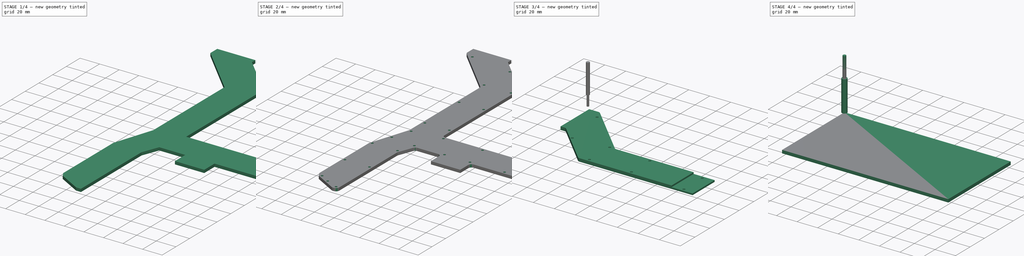
[diagram: build sequence overview — one tinted view per stage of 4, left to right]
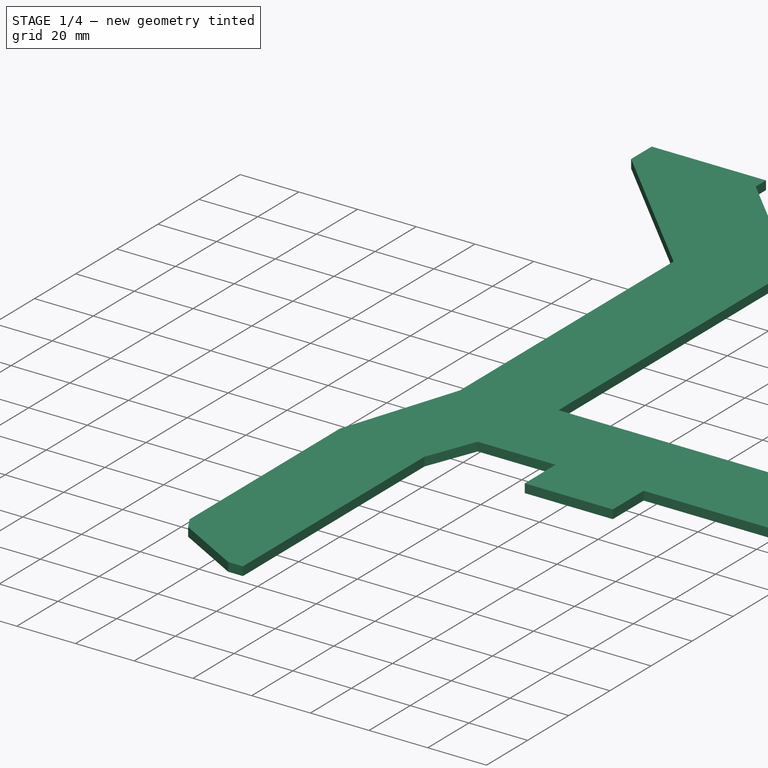
[diagram: stage 1 of 4 — iso view after this stage's code; geometry added in this stage tinted green]
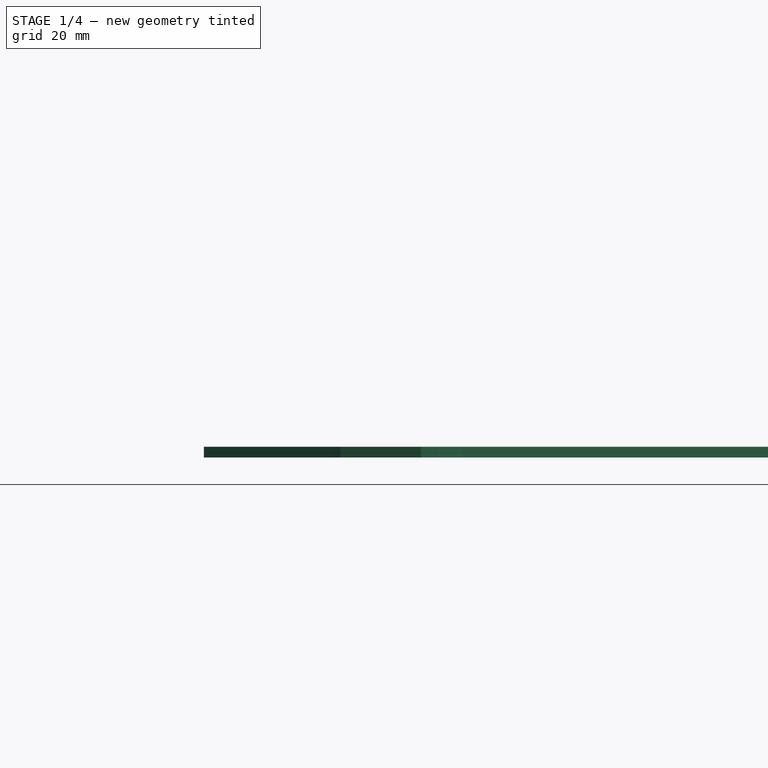
[diagram: stage 1 of 4 — front view after this stage's code; geometry added in this stage tinted green]
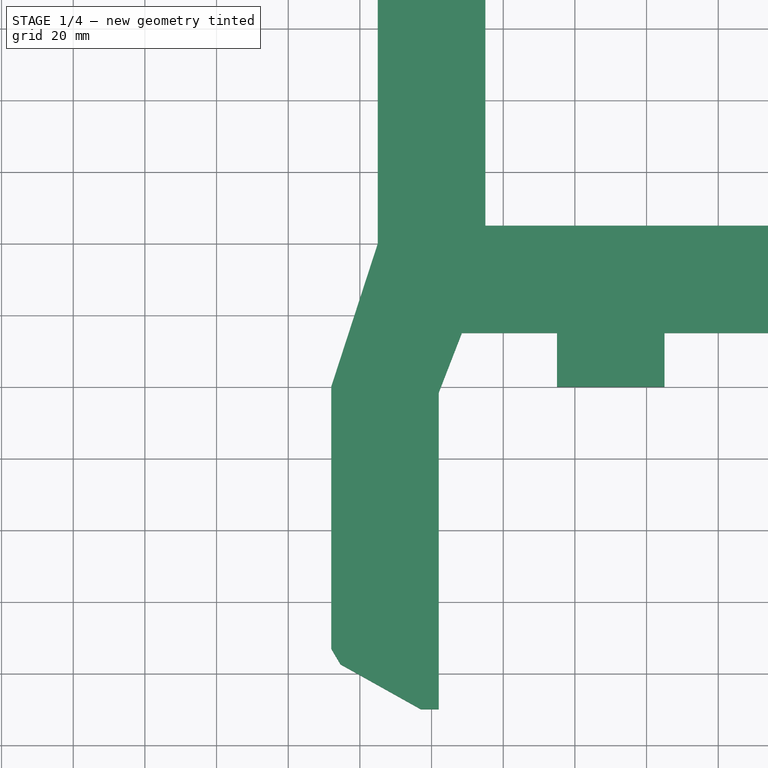
[diagram: stage 1 of 4 — top view after this stage's code; geometry added in this stage tinted green]
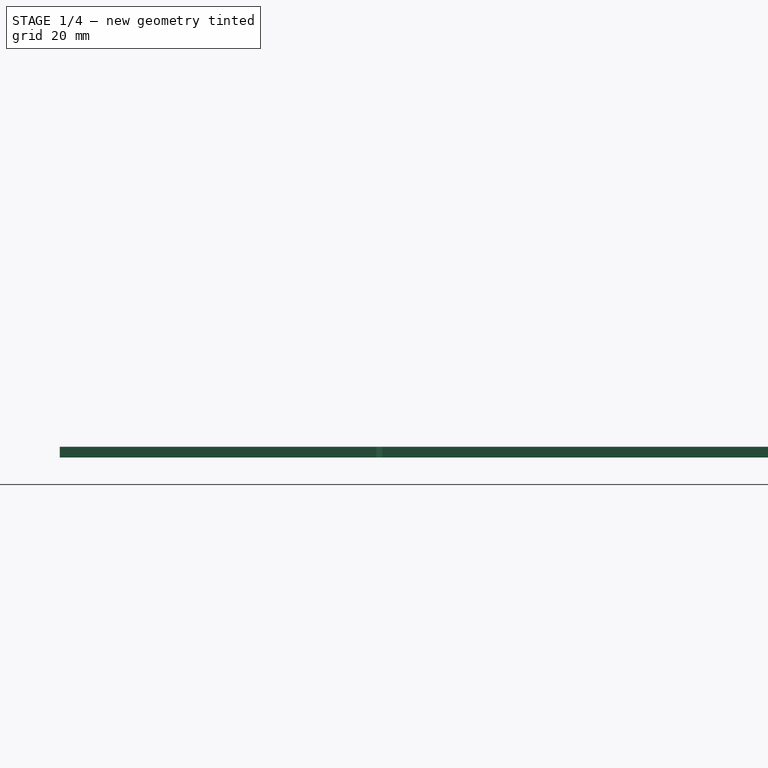
[diagram: stage 1 of 4 — right view after this stage's code; geometry added in this stage tinted green]
FCSTD DOCUMENT  (FreeCAD 0.21R33771 (Git))
Label: Back plate 2 TOol path
License: All rights reserved
LicenseURL: http://en.wikipedia.org/wiki/All_rights_reserved
objects: Path::FeaturePython×7, Sketcher::SketchObject×4, Part::FeaturePython×4, PartDesign::Pocket×3, App::DocumentObjectGroup×3, App::MeasureDistance×2, PartDesign::Pad×1, PartDesign::Fillet×1, PartDesign::Body×1, App::FeaturePython×1
note: 22 computed .brp shape members not serialized (recipe doc carries the construction recipe); baked Part::Feature solids carry a one-line shape summary decoded from their .brp

FEATURE [Sketcher::SketchObject] Sketch182  label="Wire channels Pocket003"
  FullyConstrained = false
  MapMode = 5
  Placement = pos=(0,0,0) rot=(1,0,0;3.14159rad)
  sketch-geometry (29):
    g0: LineSegment StartX=101.467 StartY=-402.5 StartZ=0 EndX=130.4 EndY=-402.5 EndZ=0
    g1: LineSegment StartX=200 StartY=-200 StartZ=0 EndX=220 EndY=-200 EndZ=0
    g2: LineSegment StartX=135.4 StartY=-402.5 StartZ=0 EndX=135.4 EndY=-397.5 EndZ=0
    g3: LineSegment StartX=135.4 StartY=-397.5 StartZ=0 EndX=175 EndY=-357.904 EndZ=0
    g4: LineSegment StartX=175 StartY=-357.904 StartZ=0 EndX=175 EndY=-245 EndZ=0
    g5: LineSegment StartX=175 StartY=-245 StartZ=0 EndX=290 EndY=-245 EndZ=0
    g6: LineSegment StartX=290 StartY=-245 StartZ=0 EndX=295 EndY=-245 EndZ=0
    g7: LineSegment StartX=295 StartY=-245 StartZ=0 EndX=295 EndY=-215 EndZ=0
    g8: LineSegment StartX=295 StartY=-215 StartZ=0 EndX=290 EndY=-215 EndZ=0
    g9: LineSegment StartX=290 StartY=-215 StartZ=0 EndX=225 EndY=-215 EndZ=0
    g10: LineSegment StartX=225 StartY=-215 StartZ=0 EndX=225 EndY=-200 EndZ=0
    g11: LineSegment StartX=195 StartY=-200 StartZ=0 EndX=195 EndY=-215 EndZ=0
    g12: LineSegment StartX=195 StartY=-215 StartZ=0 EndX=168.46 EndY=-215 EndZ=0
    g13: LineSegment StartX=168.46 StartY=-215 StartZ=0 EndX=162 EndY=-198.36 EndZ=0
    g14: LineSegment StartX=162 StartY=-198.36 StartZ=0 EndX=162 EndY=-115 EndZ=0
    g15: LineSegment StartX=162 StartY=-115 StartZ=0 EndX=162 EndY=-110 EndZ=0
    g16: LineSegment StartX=162 StartY=-110 StartZ=0 EndX=157 EndY=-110 EndZ=0
    g17: LineSegment StartX=157 StartY=-110 StartZ=0 EndX=134.577 EndY=-122.534 EndZ=0
    g18: LineSegment StartX=134.577 StartY=-122.534 StartZ=0 EndX=132 EndY=-126.896 EndZ=0
    g19: LineSegment StartX=132 StartY=-126.896 StartZ=0 EndX=132 EndY=-200.027 EndZ=0
    g20: LineSegment StartX=132 StartY=-200.027 StartZ=0 EndX=144.989 EndY=-239.968 EndZ=0
    g21: LineSegment StartX=144.989 StartY=-239.968 StartZ=0 EndX=144.989 EndY=-343.839 EndZ=0
    g22: LineSegment StartX=144.989 StartY=-343.839 StartZ=0 EndX=96.4674 EndY=-392.5 EndZ=0
    g23: LineSegment StartX=96.4674 StartY=-392.5 StartZ=0 EndX=96.4674 EndY=-397.5 EndZ=0
    g24: LineSegment StartX=96.4674 StartY=-397.5 StartZ=0 EndX=96.4674 EndY=-402.5 EndZ=0
    g25: LineSegment StartX=101.467 StartY=-402.5 StartZ=0 EndX=96.4674 EndY=-402.5 EndZ=0
    g26: LineSegment StartX=130.4 StartY=-402.5 StartZ=0 EndX=135.4 EndY=-402.5 EndZ=0
    g27: LineSegment StartX=225 StartY=-200 StartZ=0 EndX=220 EndY=-200 EndZ=0
    g28: LineSegment StartX=195 StartY=-200 StartZ=0 EndX=200 EndY=-200 EndZ=0
  constraints (78):
    c: Horizontal(g0)
    c: DistanceX(g0,g0) = 28.9326
    c: Horizontal(g1)
    c: DistanceX(g1,g1) = 20
    c: Vertical(g2)
    c: Coincident(g2,g3)
    c: Coincident(g3,g4)
    c: Vertical(g4)
    c: Coincident(g4,g5)
    c: Horizontal(g5)
    c: Coincident(g5,g6)
    c: Horizontal(g6)
    c: Coincident(g6,g7)
    c: Vertical(g7)
    c: Coincident(g7,g8)
    c: Horizontal(g8)
    c: Coincident(g8,g9)
    c: Horizontal(g9)
    c: Coincident(g9,g10)
    c: Vertical(g10)
    c: Vertical(g11)
    c: Coincident(g11,g12)
    c: Horizontal(g12)
    c: Coincident(g12,g13)
    c: Coincident(g13,g14)
    c: Vertical(g14)
    c: Coincident(g14,g15)
    c: Vertical(g15)
    c: Coincident(g15,g16)
    c: Horizontal(g16)
    c: Coincident(g16,g17)
    c: Coincident(g17,g18)
    c: Coincident(g18,g19)
    c: Vertical(g19)
    c: Coincident(g19,g20)
    c: Coincident(g20,g21)
    c: Vertical(g21)
    c: Coincident(g21,g22)
    c: Coincident(g22,g23)
    c: Vertical(g23)
    c: Coincident(g23,g24)
    c: Vertical(g24)
    c: Coincident(g25,g0)
    c: Coincident(g25,g24)
    c: Horizontal(g25)
    c: Coincident(g26,g0)
    c: Coincident(g26,g2)
    c: Horizontal(g26)
    c: Coincident(g27,g10)
    c: Coincident(g27,g1)
    c: Horizontal(g27)
    c: Coincident(g28,g11)
    c: Coincident(g28,g1)
    c: Horizontal(g28)
    c: DistanceX(g25,g25) = 5
    c: DistanceX(g26,g26) = 5
    c: DistanceY(g24,g24) = 5
    c: DistanceY(g23,g23) = 5
    c: DistanceY(g2,g2) = 5
    c: Distance(g22) = 68.7186
    c: Distance(g3) = 56
    c: DistanceY(g21,g21) = 103.871
    c: DistanceY(g4,g4) = 112.904
    c: DistanceX(g5,g5) = 115
    c: DistanceX(g12,g12) = 26.54
    c: DistanceX(g9,g9) = 65
    c: Distance(g20) = 42
    c: DistanceY(g19,g19) = 73.1311
    c: DistanceY(g14,g14) = 83.36
    c: DistanceX(g27,g27) = 5
    c: DistanceX(g28,g28) = 5
    c: DistanceX(g8,g8) = 5
    c: DistanceX(g6,g6) = 5
    c: DistanceY(g7,g7) = 30
    c: Distance(g17) = 25.6886
    c: Distance(g18) = 5.06593
    c: Distance(g16) = 5
    c: DistanceY(g15,g15) = 5
FEATURE [PartDesign::Pad] Pad011
  Direction = (0,0,-1)
  Length = 3
  Length2 = 10
  Placement = pos=(0,0,0) rot=(1,0,0;3.14159rad)
  Profile = -> Sketch182
  ReferenceAxis = -> Sketch182 [N_Axis]
  Type = 0
FEATURE [Part::FeaturePython] ToolBit001  label="2mm_Endmill"  # Path/CAM toolbit (typed FeaturePython)
  BitPropertyNames = Chipload | CuttingEdgeHeight | Diameter | Flutes | Length | Material | ShankDiameter | SpindleDirection
  BitShape = C:/Program Files/FreeCAD 0.21/Mod\Path\Tools\Shape\endmill.fcstd
  Chipload = 0
  CuttingEdgeHeight = 10
  Diameter = 2
  File = <userpath>/AppData/Roaming/FreeCAD/Macro/Bit/2mm_Endmill.fctb
  Flutes = 0
  Length = 38
  Material = 0
  ShankDiameter = 3.1
  ShapeName = endmill
  SpindleDirection = 0
FEATURE [Path::FeaturePython] _mm_Endmill  label="2mm_Endmill001"  # Path/CAM operation (typed FeaturePython)
  HorizFeed = 2.66667
  HorizRapid = 0
  SpindleDir = 0
  SpindleSpeed = 10000
  Tool = -> ToolBit001
  ToolNumber = 2
  VertFeed = 2
  VertRapid = 0
  expr: HorizRapid = SetupSheet.HorizRapid
  expr: VertRapid = SetupSheet.VertRapid
FEATURE [App::DocumentObjectGroup] Tools
  Group = -> [TC__Default_Tool,_mm_Endmill]
FEATURE [Path::FeaturePython] Pocket_Shape  # Path/CAM operation (typed FeaturePython)
  Active = true
  AreaParams:
    Tolerance = 1e-07
    FitArcs = True
    Simplify = False
    CleanDistance = 0.0
    Accuracy = 0.01
    Unit = 1.0
    MinArcPoints = 4
    MaxArcPoints = 100
    ClipperScale = 10000000.0
    Fill = 0
    Coplanar = 0
    Reorient = True
    Outline = False
    Explode = False
    OpenMode = 0
    Deflection = 0.01
    SubjectFill = 0
    ClipFill = 0
    Offset = 0.0
    ExtraPass = 0
    Stepover = 0.0
    LastStepover = 0.0
    JoinType = 0
    EndType = 0
    MiterLimit = 2.0
    RoundPrecision = 0.0
    PocketMode = 1
    ToolRadius = 1.0
    PocketExtraOffset = 0.0
    PocketStepover = 0.5
    PocketLastStepover = 0.0
    FromCenter = True
    Angle = 45.0
    AngleShift = 0.0
    Shift = 0.0
    Thicken = False
    SectionCount = -1
    Stepdown = 1.0
    SectionOffset = 0.0
    SectionTolerance = 1e-07
    SectionMode = 2
    Project = False
  Base = -> [Clone]
  ClearanceHeight = 5
  CoolantMode = 0
  CutMode = 0
  CycleTime = 00:07:55
  ExtensionCorners = true
  ExtensionLengthDefault = 1
  ExtraOffset = 0
  FinalDepth = -1.5
  FinishDepth = 0
  KeepToolDown = false
  MinTravel = false
  OffsetPattern = 0
  OpFinalDepth = -1.5
  OpStartDepth = 0
  OpStockZMax = 0
  OpStockZMin = -3
  OpToolDiameter = 2
  PathParams = {'orientation': 1, 'feedrate': 2.6666666666666665, 'feedrate_v': 2.0, 'verbose': True, 'resume_height': 3.0, 'retraction': 5.0, 'return_end': True, 'preamble': False}
  PocketLastStepOver = 0
  SafeHeight = 3
  SplitArcs = false
  StartAt = 0
  StartDepth = 0
  StartPoint = (0,0,0)
  StepDown = 2
  StepOver = 25
  ToolController = -> _mm_Endmill
  UseOutline = false
  UseStartPoint = false
  ZigZagAngle = 45
  expr: ClearanceHeight = OpStockZMax + SetupSheet.ClearanceHeightOffset
  expr: ExtensionLengthDefault = OpToolDiameter / 2
  expr: FinalDepth = OpFinalDepth
  expr: SafeHeight = OpStockZMax + SetupSheet.SafeHeightOffset
  expr: StartDepth = OpStartDepth
  expr: StepDown = OpToolDiameter
FEATURE [Path::FeaturePython] Helix  # Path/CAM operation (typed FeaturePython)
  Active = true
  Base = -> [Clone]
  ClearanceHeight = 5
  CoolantMode = 0
  CycleTime = 00:02:29
  Direction = 0
  FinalDepth = -3
  OffsetExtra = 0
  OpFinalDepth = -3
  OpStartDepth = 0
  OpStockZMax = 0
  OpStockZMin = -3
  OpToolDiameter = 2
  SafeHeight = 3
  StartDepth = 0
  StartRadius = 0
  StartSide = 0
  StepDown = 2
  StepOver = 50
  ToolController = -> _mm_Endmill
  expr: ClearanceHeight = OpStockZMax + SetupSheet.ClearanceHeightOffset
  expr: FinalDepth = OpFinalDepth
  expr: SafeHeight = OpStockZMax + SetupSheet.SafeHeightOffset
  expr: StartDepth = OpStartDepth
  expr: StepDown = OpToolDiameter
FEATURE [Path::FeaturePython] Profile  # Path/CAM operation (typed FeaturePython)
  Active = true
  AreaParams:
    Tolerance = 1e-07
    FitArcs = True
    Simplify = False
    CleanDistance = 0.0
    Accuracy = 0.01
    Unit = 1.0
    MinArcPoints = 4
    MaxArcPoints = 100
    ClipperScale = 10000000.0
    Fill = 0
    Coplanar = 0
    Reorient = True
    Outline = False
    Explode = False
    OpenMode = 0
    Deflection = 0.01
    SubjectFill = 0
    ClipFill = 0
    Offset = 1.0
    ExtraPass = 0
    Stepover = 0.0
    LastStepover = 0.0
    JoinType = 0
    EndType = 0
    MiterLimit = 2.0
    RoundPrecision = 0.0
    PocketMode = 0
    ToolRadius = 1.0
    PocketExtraOffset = 0.0
    PocketStepover = 0.0
    PocketLastStepover = 0.0
    FromCenter = False
    Angle = 45.0
    AngleShift = 0.0
    Shift = 0.0
    Thicken = False
    SectionCount = -1
    Stepdown = 1.0
    SectionOffset = 0.0
    SectionTolerance = 1e-07
    SectionMode = 2
    Project = False
  ClearanceHeight = 5
  CoolantMode = 0
  CycleTime = 00:06:21
  Direction = 0
  FinalDepth = -3
  HandleMultipleFeatures = 0
  JoinType = 0
  MiterLimit = 0.1
  OffsetExtra = 0
  OpFinalDepth = -3
  OpStartDepth = 0
  OpStockZMax = 0
  OpStockZMin = -3
  OpToolDiameter = 2
  PathParams = {'orientation': 1, 'feedrate': 2.6666666666666665, 'feedrate_v': 2.0, 'verbose': True, 'resume_height': 3.0, 'retraction': 5.0, 'return_end': True, 'preamble': False}
  SafeHeight = 3
  Side = 0
  SplitArcs = false
  StartDepth = 0
  StartPoint = (0,0,0)
  StepDown = 2
  ToolController = -> _mm_Endmill
  UseComp = true
  UseStartPoint = false
  processCircles = false
  processHoles = false
  processPerimeter = true
  expr: ClearanceHeight = OpStockZMax + SetupSheet.ClearanceHeightOffset
  expr: FinalDepth = OpFinalDepth
  expr: SafeHeight = OpStockZMax + SetupSheet.SafeHeightOffset
  expr: StartDepth = OpStartDepth
  expr: StepDown = OpToolDiameter
FEATURE [Path::FeaturePython] Pocket_Shape001  # Path/CAM operation (typed FeaturePython)
  Active = true
  AreaParams:
    Tolerance = 1e-07
    FitArcs = True
    Simplify = False
    CleanDistance = 0.0
    Accuracy = 0.01
    Unit = 1.0
    MinArcPoints = 4
    MaxArcPoints = 100
    ClipperScale = 10000000.0
    Fill = 0
    Coplanar = 0
    Reorient = True
    Outline = False
    Explode = False
    OpenMode = 0
    Deflection = 0.01
    SubjectFill = 0
    ClipFill = 0
    Offset = 0.0
    ExtraPass = 0
    Stepover = 0.0
    LastStepover = 0.0
    JoinType = 0
    EndType = 0
    MiterLimit = 2.0
    RoundPrecision = 0.0
    PocketMode = 1
    ToolRadius = 1.0
    PocketExtraOffset = 0.0
    PocketStepover = 2.0
    PocketLastStepover = 0.0
    FromCenter = True
    Angle = 45.0
    AngleShift = 0.0
    Shift = 0.0
    Thicken = False
    SectionCount = -1
    Stepdown = 1.0
    SectionOffset = 0.0
    SectionTolerance = 1e-07
    SectionMode = 2
    Project = False
  Base = -> [Clone]
  ClearanceHeight = 5
  CoolantMode = 0
  CutMode = 0
  CycleTime = 00:00:47
  ExtensionCorners = true
  ExtensionLengthDefault = 1
  ExtraOffset = 0
  FinalDepth = -3
  FinishDepth = 0
  KeepToolDown = false
  MinTravel = false
  OffsetPattern = 0
  OpFinalDepth = -3
  OpStartDepth = 0
  OpStockZMax = 0
  OpStockZMin = -3
  OpToolDiameter = 2
  PathParams = {'orientation': 1, 'feedrate': 2.6666666666666665, 'feedrate_v': 2.0, 'verbose': True, 'resume_height': 3.0, 'retraction': 5.0, 'return_end': True, 'preamble': False}
  PocketLastStepOver = 0
  SafeHeight = 3
  SplitArcs = false
  StartAt = 0
  StartDepth = 0
  StartPoint = (0,0,0)
  StepDown = 2
  StepOver = 100
  ToolController = -> _mm_Endmill
  UseOutline = false
  UseStartPoint = false
  ZigZagAngle = 45
  expr: ClearanceHeight = OpStockZMax + SetupSheet.ClearanceHeightOffset
  expr: ExtensionLengthDefault = OpToolDiameter / 2
  expr: FinalDepth = OpFinalDepth
  expr: SafeHeight = OpStockZMax + SetupSheet.SafeHeightOffset
  expr: StartDepth = OpStartDepth
  expr: StepDown = OpToolDiameter
FEATURE [App::DocumentObjectGroup] Operations
  Group = -> [Pocket_Shape,Helix,Profile,Pocket_Shape001]
FEATURE [Path::FeaturePython] Job  # Path/CAM operation (typed FeaturePython)
  CycleTime = 00:17:32
  Fixtures = G54
  GeometryTolerance = 0.01
  JobType = 0
  LastPostProcessDate = 2024-12-16 11:11:41.714360
  LastPostProcessOutput = <userpath>\Desktop\back plate 2.nc
  Model = -> Model
  Operations = -> Operations
  OrderOutputBy = 0
  PostProcessor = 1
  SetupSheet = -> SetupSheet
  SplitOutput = false
  Stock = -> Stock
  Tools = -> Tools
FEATURE [App::MeasureDistance] Distance  label="Distance: 161.34578 mm"
  Distance = 161.346
  P1 = (0,-86.5326,0)
  P2 = (161.346,-86.5326,0)
FEATURE [App::MeasureDistance] Distance001  label="Distance: 86.53275 mm"
  Distance = 86.5328
  P1 = (161.345,0,0)
  P2 = (161.5,-86.5326,0)
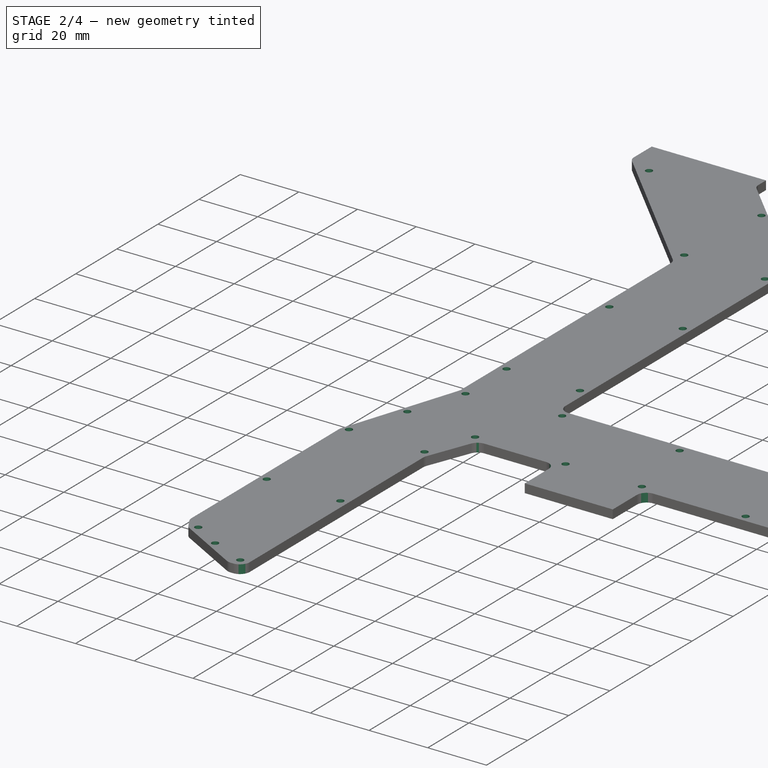
[diagram: stage 2 of 4 — iso view after this stage's code; geometry added in this stage tinted green]
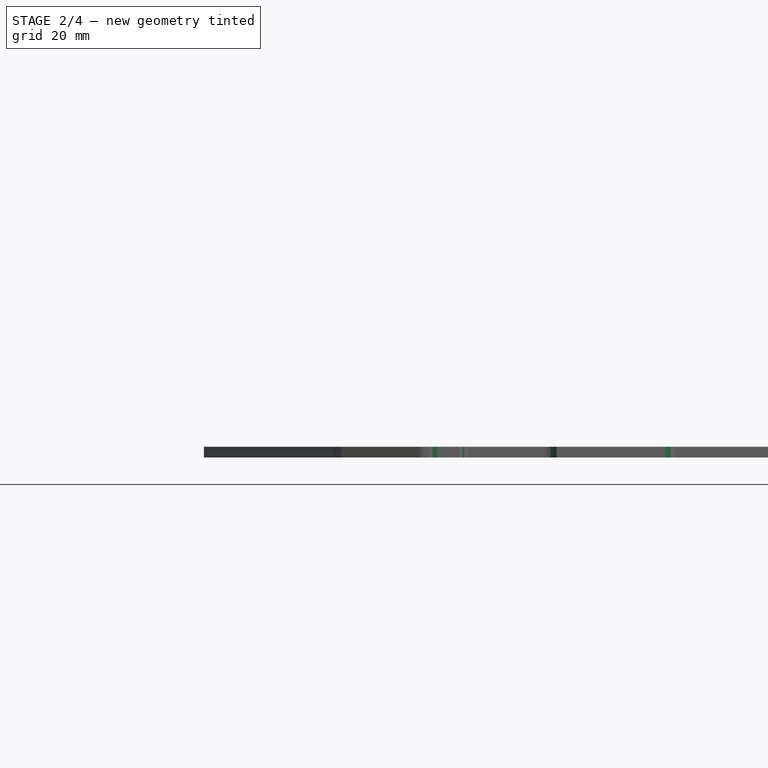
[diagram: stage 2 of 4 — front view after this stage's code; geometry added in this stage tinted green]
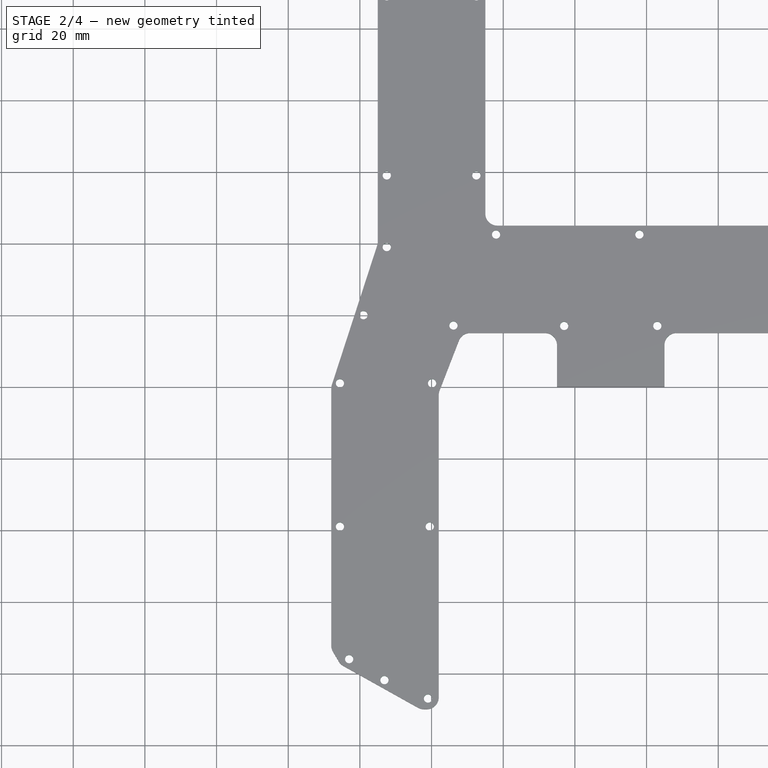
[diagram: stage 2 of 4 — top view after this stage's code; geometry added in this stage tinted green]
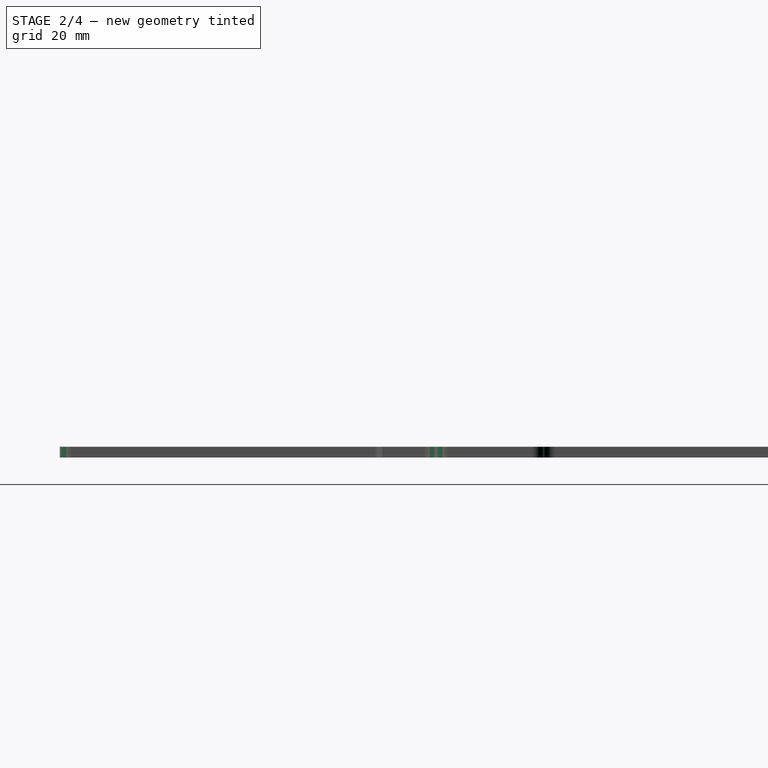
[diagram: stage 2 of 4 — right view after this stage's code; geometry added in this stage tinted green]
FEATURE [PartDesign::Fillet] Fillet036
  Base = -> Pad011 [Edge2,Edge5,Edge8,Edge14,Edge17,Edge20,Edge23,Edge26,Edge29,Edge32,Edge35,Edge53,Edge56,Edge59,Edge65,Edge68,Edge74]
  BaseFeature = -> Pad011
  Placement = pos=(0,0,0) rot=(1,0,0;3.14159rad)
  Radius = 3.35
  SupportTransform = false
  UseAllEdges = false
FEATURE [Sketcher::SketchObject] Sketch183
  FullyConstrained = false
  MapMode = 5
  Placement = pos=(0,0,-3) rot=(1,0,0;3.14159rad)
  Support = -> [Fillet036]
  sketch-geometry (38):
    g0: Circle CenterX=105 CenterY=-389 CenterZ=0 NormalX=0 NormalY=0 NormalZ=1 AngleXU=0 Radius=1.15
    g1: Circle CenterX=145 CenterY=-349 CenterZ=0 NormalX=0 NormalY=0 NormalZ=1 AngleXU=0 Radius=1.15
    g2: Circle CenterX=147.5 CenterY=-309 CenterZ=0 NormalX=0 NormalY=0 NormalZ=1 AngleXU=0 Radius=1.15
    g3: Circle CenterX=147.5 CenterY=-259 CenterZ=0 NormalX=0 NormalY=0 NormalZ=1 AngleXU=0 Radius=1.15
    g4: Circle CenterX=172.5 CenterY=-259 CenterZ=0 NormalX=0 NormalY=0 NormalZ=1 AngleXU=0 Radius=1.15
    g5: Circle CenterX=172.5 CenterY=-309 CenterZ=0 NormalX=0 NormalY=0 NormalZ=1 AngleXU=0 Radius=1.15
    g6: Circle CenterX=172.5 CenterY=-349 CenterZ=0 NormalX=0 NormalY=0 NormalZ=1 AngleXU=0 Radius=1.15
    g7: Circle CenterX=147.665 CenterY=-382.765 CenterZ=0 NormalX=0 NormalY=0 NormalZ=1 AngleXU=0 Radius=1.15
    g8: LineSegment StartX=147.5 StartY=-259 StartZ=0 EndX=147.5 EndY=-239 EndZ=0
    g9: LineSegment StartX=147.5 StartY=-239 StartZ=0 EndX=141 EndY=-220 EndZ=0
    g10: LineSegment StartX=141 StartY=-220 StartZ=0 EndX=134.428 EndY=-201 EndZ=0
    g11: LineSegment StartX=134.428 StartY=-201 StartZ=0 EndX=134.428 EndY=-161 EndZ=0
    g12: LineSegment StartX=134.428 StartY=-161 StartZ=0 EndX=134.428 EndY=-131 EndZ=0
    g13: LineSegment StartX=134.428 StartY=-131.025 StartZ=0 EndX=137 EndY=-124 EndZ=0
    g14: LineSegment StartX=137 StartY=-124 StartZ=0 EndX=146.85 EndY=-118.15 EndZ=0
    g15: LineSegment StartX=172.5 StartY=-259 StartZ=0 EndX=178 EndY=-242.5 EndZ=0
    g16: LineSegment StartX=178 StartY=-242.5 StartZ=0 EndX=218 EndY=-242.5 EndZ=0
    g17: LineSegment StartX=218 StartY=-242.5 StartZ=0 EndX=258 EndY=-242.5 EndZ=0
    g18: LineSegment StartX=258 StartY=-242.5 StartZ=0 EndX=292 EndY=-242.5 EndZ=0
    g19: Circle CenterX=178 CenterY=-242.5 CenterZ=0 NormalX=0 NormalY=0 NormalZ=1 AngleXU=0 Radius=1.15
    g20: Circle CenterX=218 CenterY=-242.5 CenterZ=0 NormalX=0 NormalY=0 NormalZ=1 AngleXU=0 Radius=1.15
    g21: Circle CenterX=258 CenterY=-242.5 CenterZ=0 NormalX=0 NormalY=0 NormalZ=1 AngleXU=0 Radius=1.15
    g22: Circle CenterX=258 CenterY=-217.5 CenterZ=0 NormalX=0 NormalY=0 NormalZ=1 AngleXU=0 Radius=1.15
    g23: Circle CenterX=292 CenterY=-242.5 CenterZ=0 NormalX=0 NormalY=0 NormalZ=1 AngleXU=0 Radius=1.15
    g24: Circle CenterX=292 CenterY=-217.5 CenterZ=0 NormalX=0 NormalY=0 NormalZ=1 AngleXU=0 Radius=1.15
    g25: Circle CenterX=292.5 CenterY=-230 CenterZ=0 NormalX=0 NormalY=0 NormalZ=1 AngleXU=0 Radius=1.15
    g26: Circle CenterX=223 CenterY=-217 CenterZ=0 NormalX=0 NormalY=0 NormalZ=1 AngleXU=0 Radius=1.15
    g27: Circle CenterX=197 CenterY=-217 CenterZ=0 NormalX=0 NormalY=0 NormalZ=1 AngleXU=0 Radius=1.15
    g28: Circle CenterX=166.11 CenterY=-217.11 CenterZ=0 NormalX=0 NormalY=0 NormalZ=1 AngleXU=0 Radius=1.15
    g29: Circle CenterX=147.5 CenterY=-239 CenterZ=0 NormalX=0 NormalY=0 NormalZ=1 AngleXU=0 Radius=1.15
    g30: Circle CenterX=141 CenterY=-220 CenterZ=0 NormalX=0 NormalY=0 NormalZ=1 AngleXU=0 Radius=1.15
    g31: Circle CenterX=134.428 CenterY=-201 CenterZ=0 NormalX=0 NormalY=0 NormalZ=1 AngleXU=0 Radius=1.15
    g32: Circle CenterX=160.15 CenterY=-201 CenterZ=0 NormalX=0 NormalY=0 NormalZ=1 AngleXU=0 Radius=1.15
    g33: Circle CenterX=134.428 CenterY=-161 CenterZ=0 NormalX=0 NormalY=0 NormalZ=1 AngleXU=0 Radius=1.15
    g34: Circle CenterX=159.5 CenterY=-161 CenterZ=0 NormalX=0 NormalY=0 NormalZ=1 AngleXU=0 Radius=1.15
    g35: Circle CenterX=137 CenterY=-124 CenterZ=0 NormalX=0 NormalY=0 NormalZ=1 AngleXU=0 Radius=1.15
    g36: Circle CenterX=146.85 CenterY=-118.15 CenterZ=0 NormalX=0 NormalY=0 NormalZ=1 AngleXU=0 Radius=1.15
    g37: Circle CenterX=159 CenterY=-113 CenterZ=0 NormalX=0 NormalY=0 NormalZ=1 AngleXU=0 Radius=1.15
  constraints (50):
    c: Diameter(g0) = 2.3
    c: Diameter(g1) = 2.3
    c: Diameter(g2) = 2.3
    c: Diameter(g7) = 2.3
    c: Diameter(g6) = 2.3
    c: Diameter(g5) = 2.3
    c: Diameter(g3) = 2.3
    c: Diameter(g4) = 2.3
    c: Coincident(g8,g3)
    c: Vertical(g8)
    c: Coincident(g9,g8)
    c: Coincident(g10,g9)
    c: Coincident(g11,g10)
    c: Vertical(g11)
    c: Coincident(g12,g11)
    c: Vertical(g12)
    c: PointOnObject(g13,g12)
    c: Coincident(g14,g13)
    c: Coincident(g15,g4)
    c: Coincident(g16,g15)
    c: Horizontal(g16)
    c: Coincident(g17,g16)
    c: Horizontal(g17)
    c: Coincident(g18,g17)
    c: Horizontal(g18)
    c: Coincident(g19,g15)
    c: Coincident(g20,g16)
    c: Coincident(g21,g17)
    c: Coincident(g23,g18)
    c: Coincident(g29,g8)
    c: Coincident(g30,g9)
    c: Coincident(g31,g10)
    c: Coincident(g33,g11)
    c: Coincident(g35,g13)
    c: Coincident(g36,g14)
    c: Equal(g29,g30)
    c: Equal(g29,g19)
    c: Equal(g29,g28)
    c: Equal(g29,g27)
    c: Equal(g29,g26)
    c: Equal(g29,g20)
    c: Equal(g29,g21)
    c: Equal(g29,g22)
    c: Equal(g29,g24)
    c: Equal(g29,g23)
    c: Equal(g29,g25)
    c: Equal(g29,g32)
    c: Equal(g29,g31)
    c: Equal(g29, g33-g37) x5
    c: Diameter(g29) = 2.3
FEATURE [PartDesign::Pocket] Pocket052
  BaseFeature = -> Fillet036
  Direction = (0,-1e-16,1)
  Length = 3
  Length2 = 5
  Placement = pos=(0,0,0) rot=(1,0,0;3.14159rad)
  Profile = -> Sketch183
  ReferenceAxis = -> Sketch183 [N_Axis]
  Type = 0
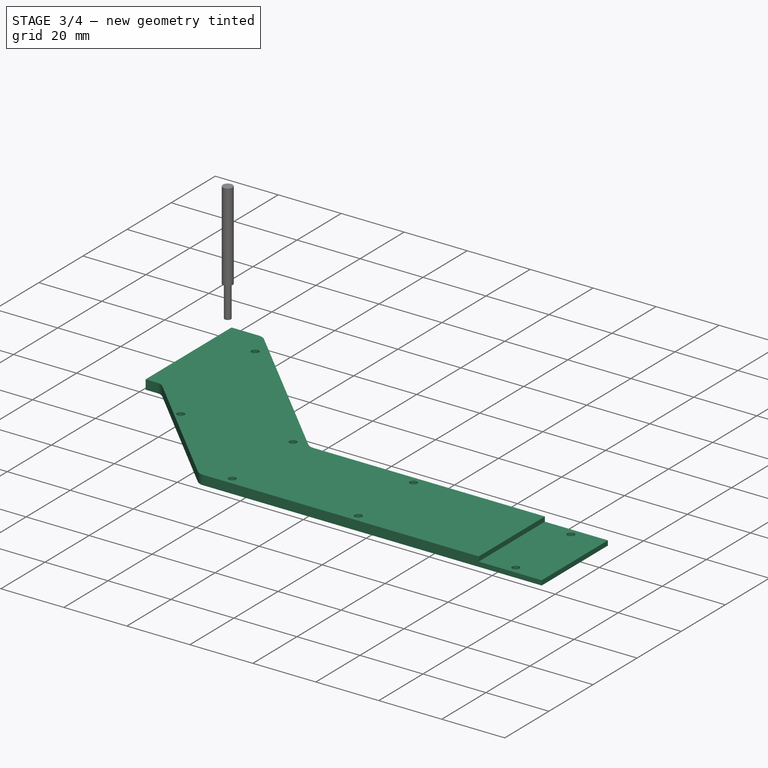
[diagram: stage 3 of 4 — iso view after this stage's code; geometry added in this stage tinted green]
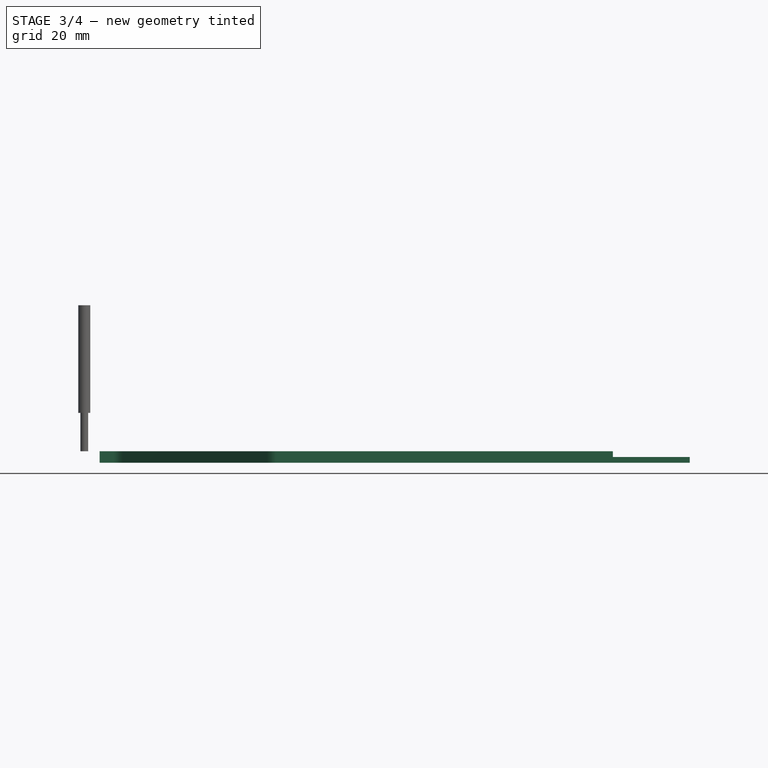
[diagram: stage 3 of 4 — front view after this stage's code; geometry added in this stage tinted green]
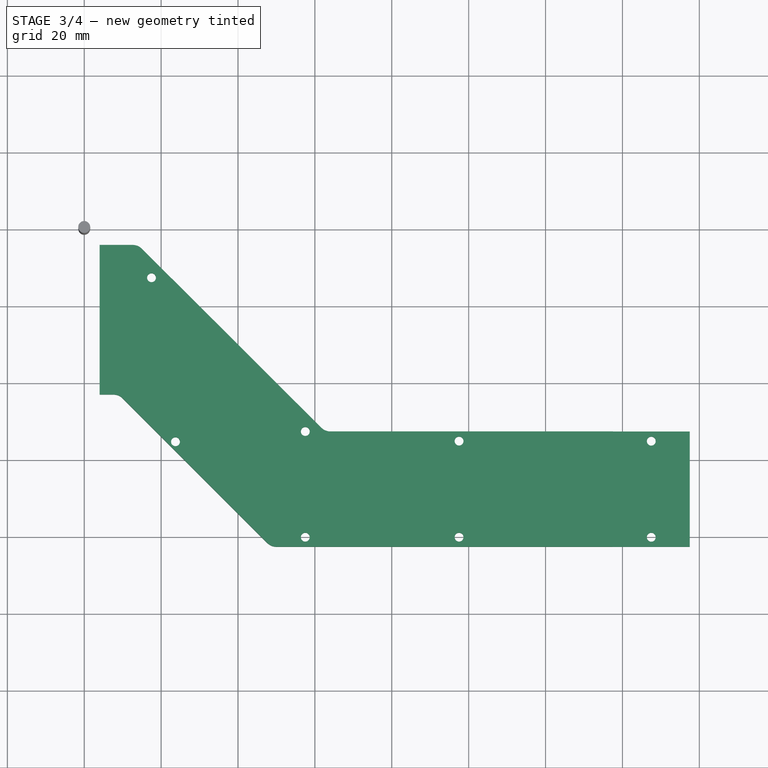
[diagram: stage 3 of 4 — top view after this stage's code; geometry added in this stage tinted green]
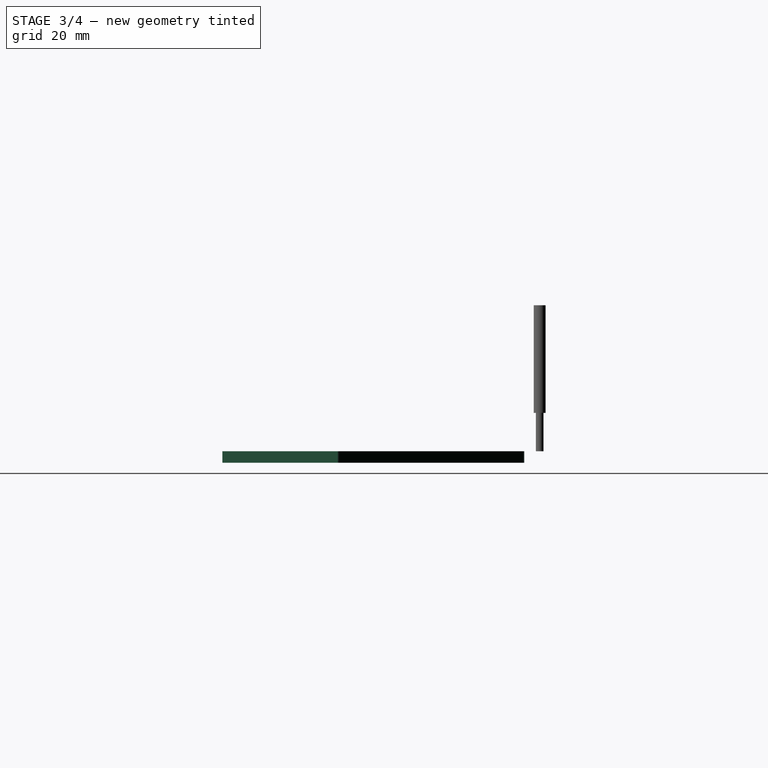
[diagram: stage 3 of 4 — right view after this stage's code; geometry added in this stage tinted green]
FEATURE [Sketcher::SketchObject] Sketch186
  FullyConstrained = false
  MapMode = 5
  Placement = pos=(0,0,-3) rot=(1,0,0;3.14159rad)
  Support = -> [Pocket052]
  sketch-geometry (8):
    g0: LineSegment StartX=172.5 StartY=-259 StartZ=0 EndX=172.5 EndY=-249 EndZ=0
    g1: LineSegment StartX=175 StartY=-249 StartZ=0 EndX=130 EndY=-249 EndZ=0
    g2: LineSegment StartX=130 StartY=-249 StartZ=0 EndX=130 EndY=-100 EndZ=0
    g3: LineSegment StartX=130 StartY=-100 StartZ=0 EndX=170 EndY=-100 EndZ=0
    g4: LineSegment StartX=170 StartY=-100 StartZ=0 EndX=170 EndY=-190 EndZ=0
    g5: LineSegment StartX=170 StartY=-190 StartZ=0 EndX=300 EndY=-190 EndZ=0
    g6: LineSegment StartX=300 StartY=-190 StartZ=0 EndX=300 EndY=-249 EndZ=0
    g7: LineSegment StartX=300 StartY=-249 StartZ=0 EndX=175 EndY=-249 EndZ=0
  constraints (15):
    c: Vertical(g0)
    c: Horizontal(g1)
    c: Coincident(g1,g2)
    c: Vertical(g2)
    c: Coincident(g2,g3)
    c: Horizontal(g3)
    c: Coincident(g3,g4)
    c: Vertical(g4)
    c: Coincident(g4,g5)
    c: Horizontal(g5)
    c: Coincident(g5,g6)
    c: Vertical(g6)
    c: Coincident(g6,g7)
    c: Coincident(g7,g1)
    c: Horizontal(g7)
FEATURE [PartDesign::Pocket] Pocket054
  BaseFeature = -> Pocket052
  Direction = (0,-2e-16,1)
  Length = 5
  Length2 = 5
  Placement = pos=(0,0,0) rot=(1,0,0;3.14159rad)
  Profile = -> Sketch186
  ReferenceAxis = -> Sketch186 [N_Axis]
  Type = 0
FEATURE [Sketcher::SketchObject] Sketch187
  FullyConstrained = false
  MapMode = 5
  Placement = pos=(0,0,-3) rot=(1,0,0;3.14159rad)
  Support = -> [Pocket054]
  sketch-geometry (4):
    g0: LineSegment StartX=144 StartY=-249 StartZ=0 EndX=175 EndY=-249 EndZ=0
    g1: LineSegment StartX=175 StartY=-249 StartZ=0 EndX=175 EndY=-269 EndZ=0
    g2: LineSegment StartX=175 StartY=-269 StartZ=0 EndX=144 EndY=-269 EndZ=0
    g3: LineSegment StartX=144 StartY=-269 StartZ=0 EndX=144 EndY=-249 EndZ=0
  constraints (8):
    c: Coincident(g0,g1)
    c: Coincident(g1,g2)
    c: Coincident(g2,g3)
    c: Coincident(g3,g0)
    c: Horizontal(g0)
    c: Horizontal(g2)
    c: Vertical(g1)
    c: Vertical(g3)
FEATURE [PartDesign::Pocket] Pocket055
  BaseFeature = -> Pocket054
  Direction = (0,-4e-16,1)
  Length = 1.5
  Length2 = 5
  Placement = pos=(0,0,0) rot=(1,0,0;3.14159rad)
  Profile = -> Sketch187
  ReferenceAxis = -> Sketch187 [N_Axis]
  Type = 0
FEATURE [PartDesign::Body] Body023  label="Back Plate 2"
  Group = -> [Sketch182,Pad011,Fillet036,Sketch183,Pocket052,Sketch186,Pocket054,Sketch187,Pocket055]
  Origin = -> Origin192
  Placement = pos=(0,0,-5) rot=(-0.707107,0.707107,0;3.14159rad)
  Tip = -> Pocket055
FEATURE [App::FeaturePython] SetupSheet  # Path/CAM operation (typed FeaturePython)
  ClearanceHeightExpression = OpStockZMax+SetupSheet.ClearanceHeightOffset
  ClearanceHeightOffset = 5
  CoolantMode = 0
  CoolantModes = None | Flood | Mist
  FinalDepthExpression = OpFinalDepth
  HorizRapid = 0
  SafeHeightExpression = OpStockZMax+SetupSheet.SafeHeightOffset
  SafeHeightOffset = 3
  StartDepthExpression = OpStartDepth
  StepDownExpression = OpToolDiameter
  VertRapid = 0
FEATURE [Part::FeaturePython] Clone  label="Model-Back Plate 2"  # Draft clone (typed FeaturePython)
  AttacherType = Attacher::AttachEngine3D
  Fuse = false
  Objects = -> [Body023]
  PathResource = Model
  Placement = pos=(406.5,92.4674,-3) rot=(-0.707107,0.707107,0;3.14159rad)
  Scale = (1,1,1)
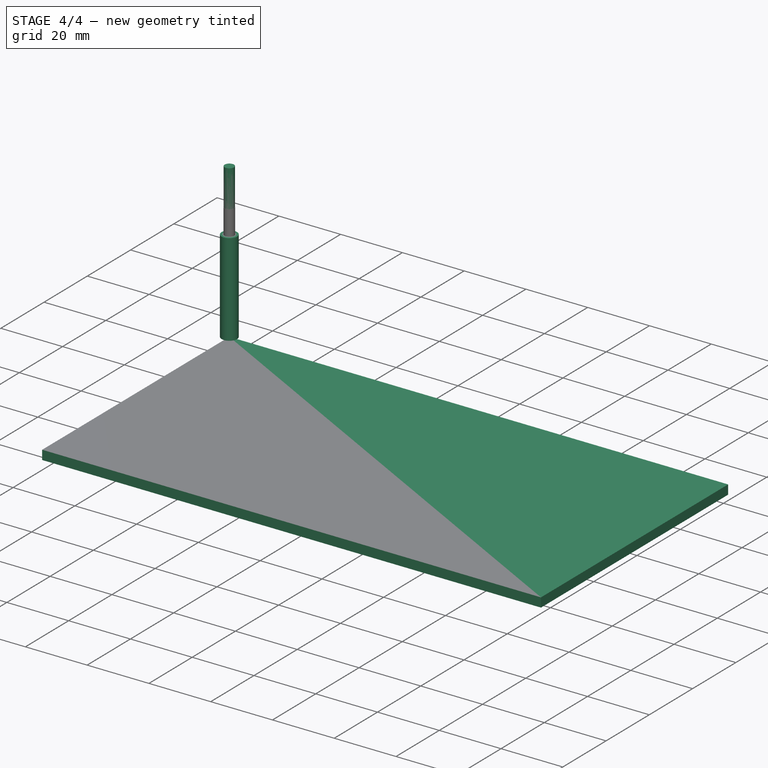
[diagram: stage 4 of 4 — iso view after this stage's code; geometry added in this stage tinted green]
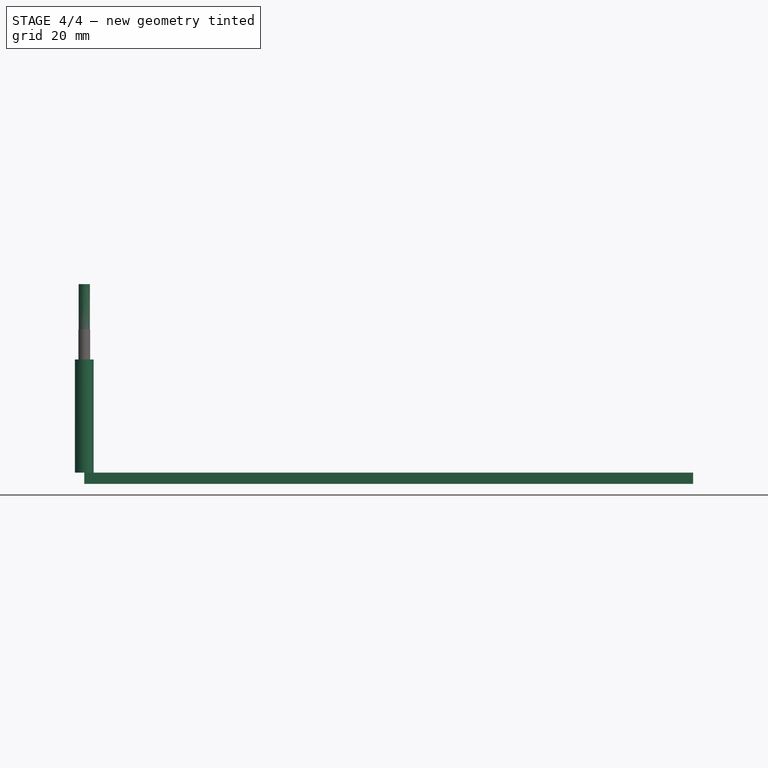
[diagram: stage 4 of 4 — front view after this stage's code; geometry added in this stage tinted green]
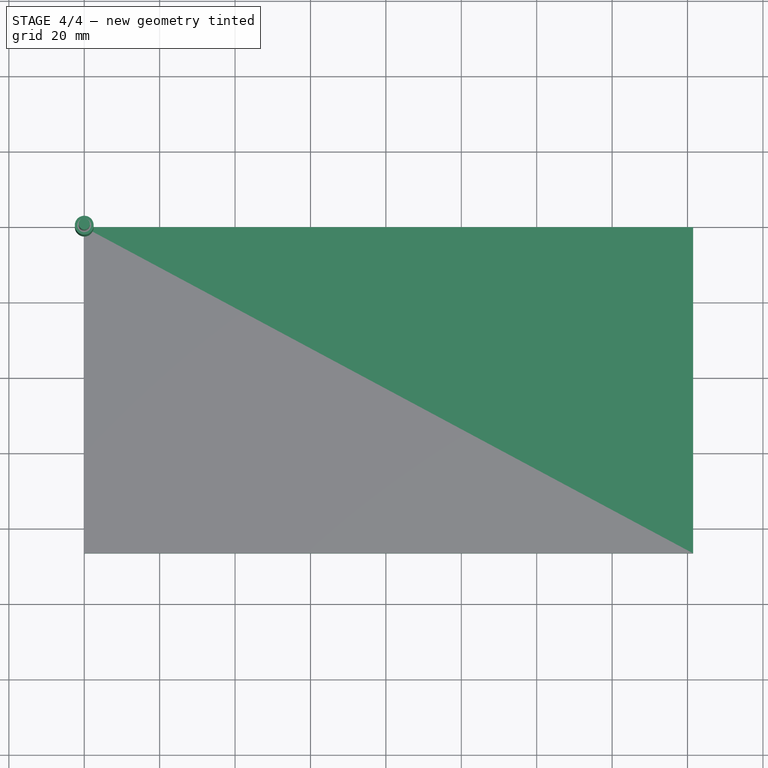
[diagram: stage 4 of 4 — top view after this stage's code; geometry added in this stage tinted green]
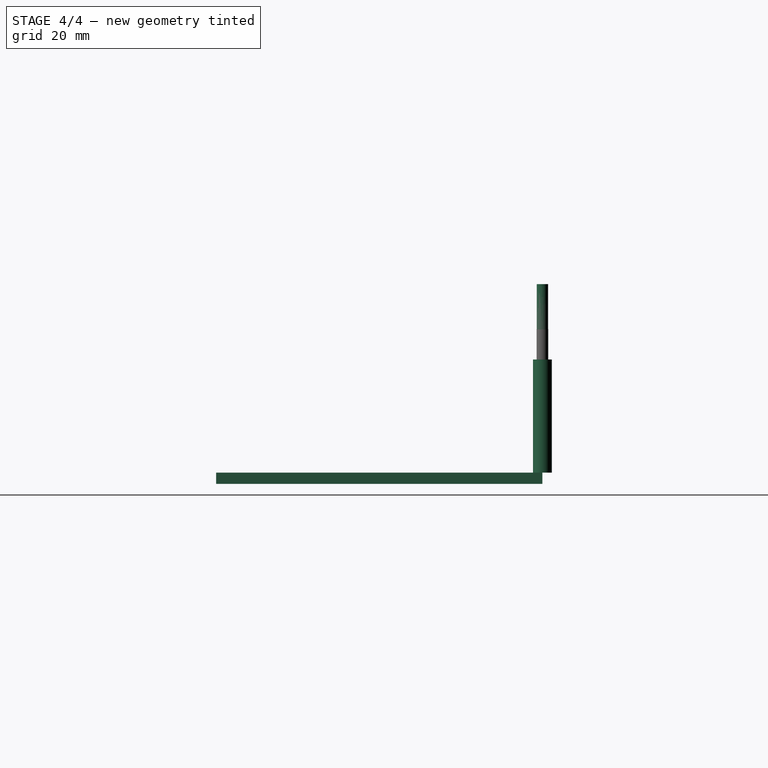
[diagram: stage 4 of 4 — right view after this stage's code; geometry added in this stage tinted green]
FEATURE [App::DocumentObjectGroup] Model
  Group = -> [Clone]
FEATURE [Part::FeaturePython] ToolBit  label="Endmill"  # Path/CAM toolbit (typed FeaturePython)
  BitPropertyNames = Chipload | CuttingEdgeHeight | Diameter | Flutes | Length | Material | ShankDiameter | SpindleDirection
  BitShape = C:/Program Files/FreeCAD 0.21/Mod\Path\Tools\Shape\endmill.fcstd
  Chipload = 0
  CuttingEdgeHeight = 30
  Diameter = 5
  Flutes = 0
  Length = 50
  Material = 0
  ShankDiameter = 3
  ShapeName = endmill
  SpindleDirection = 0
FEATURE [Path::FeaturePython] TC__Default_Tool  label="TC: Default Tool"  # Path/CAM operation (typed FeaturePython)
  HorizFeed = 0
  HorizRapid = 0
  SpindleDir = 0
  SpindleSpeed = 0
  Tool = -> ToolBit
  ToolNumber = 1
  VertFeed = 0
  VertRapid = 0
  expr: HorizRapid = SetupSheet.HorizRapid
  expr: VertRapid = SetupSheet.VertRapid
FEATURE [Part::FeaturePython] Stock  # WARN: FeaturePython — macro-defined, semantics opaque (R4)
  Base = -> Model
  ExtXneg = 4
  ExtXpos = 4
  ExtYneg = 4
  ExtYpos = 4
  ExtZneg = 0
  ExtZpos = 0
  Placement = pos=(4,-82.5326,-3) rot=(0,0,1;0rad)
  StockType = FromBase
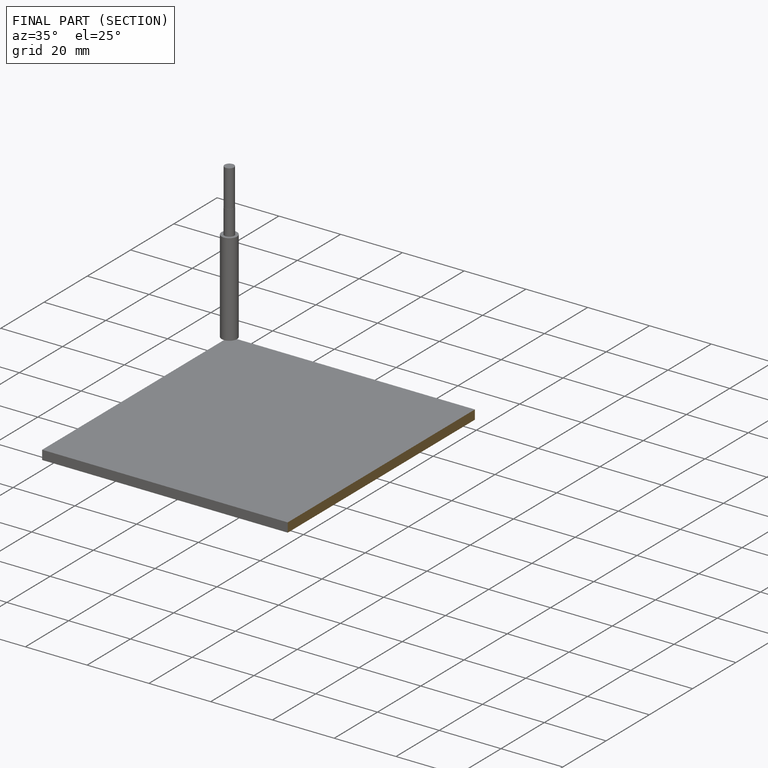
[diagram: finished part — half-section view (interior)]
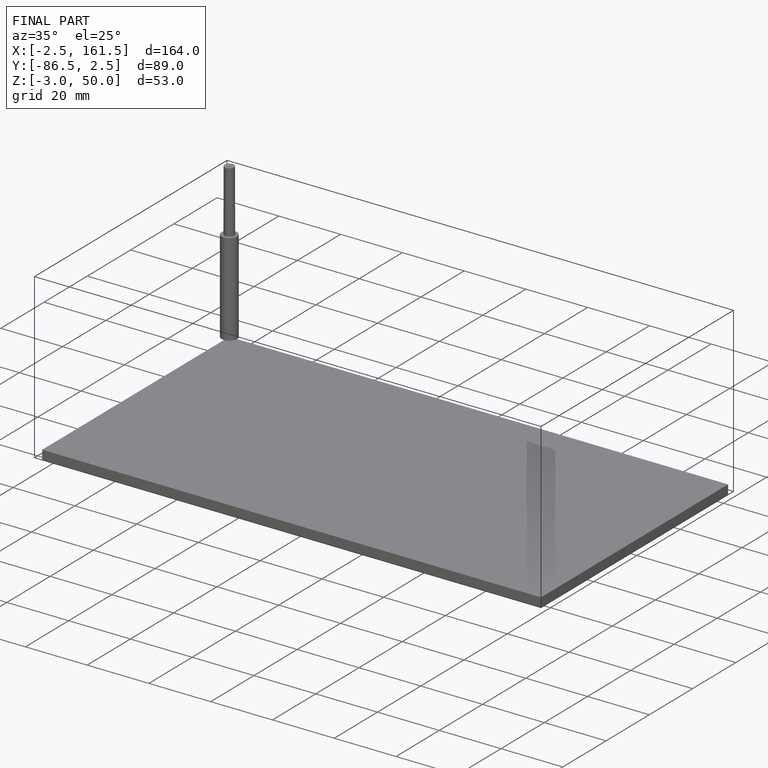
[diagram: finished part — iso view with bounding-box wireframe]
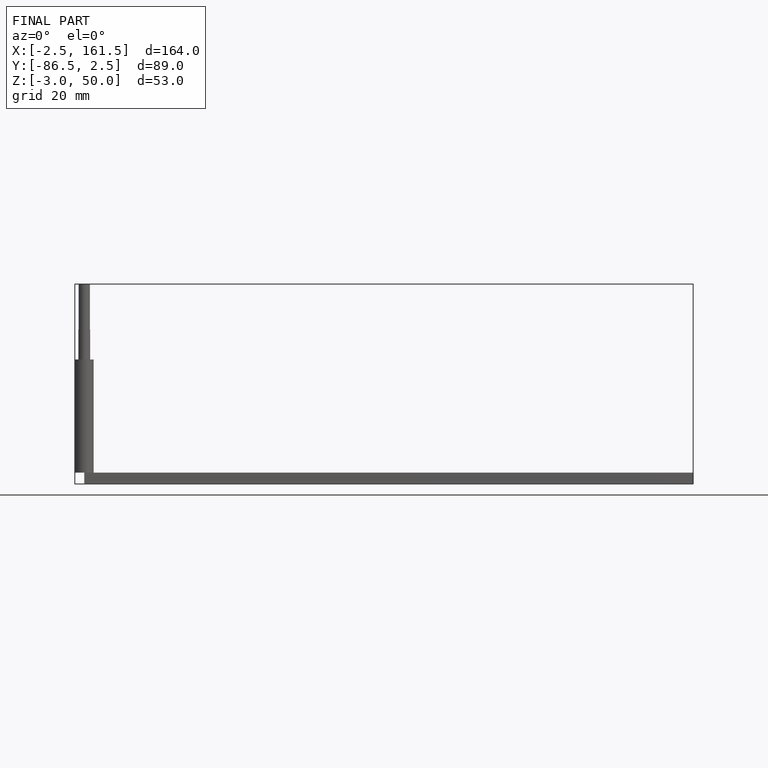
[diagram: finished part — front view with bounding-box wireframe]
